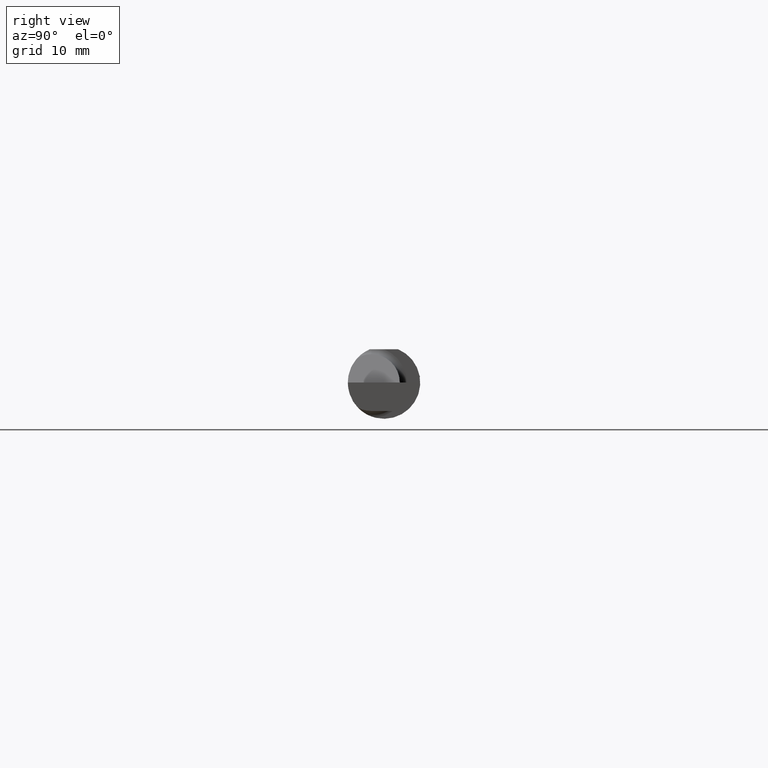
[diagram: clean part render]
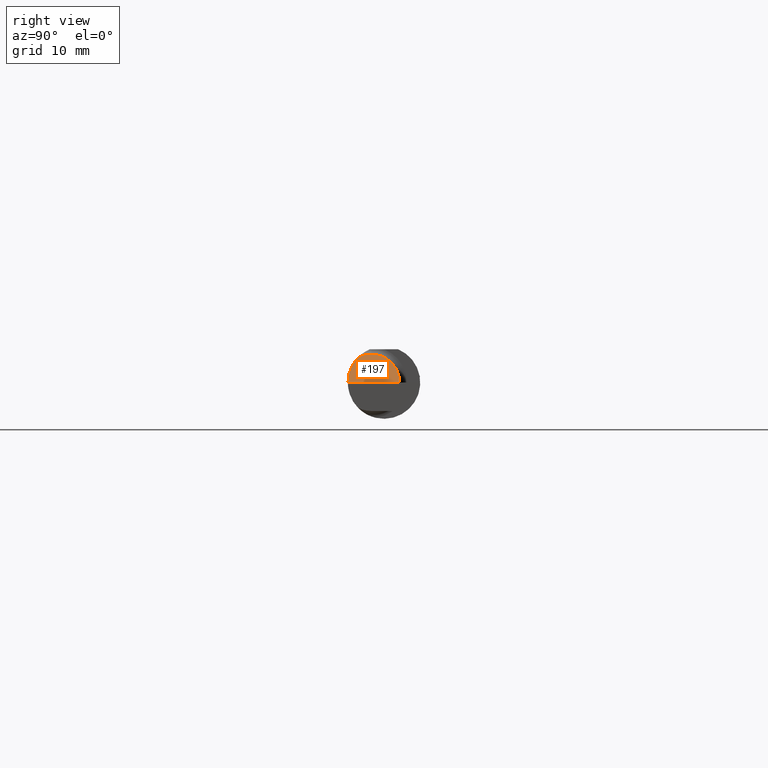
[diagram: same view with one face highlighted and labeled with its STEP entity id]
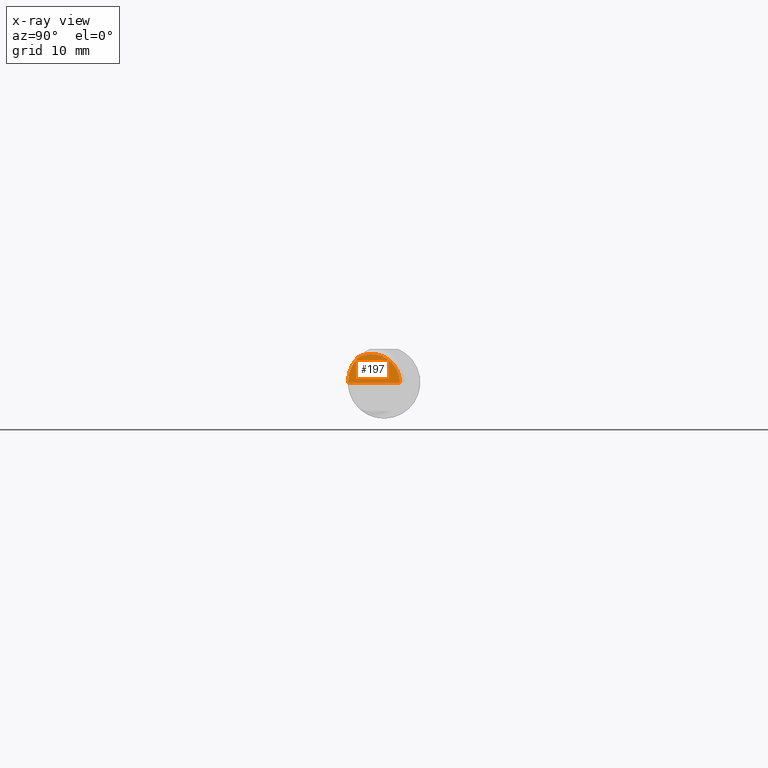
[diagram: x-ray of the same camera — body ghosted, the highlighted face saturated]
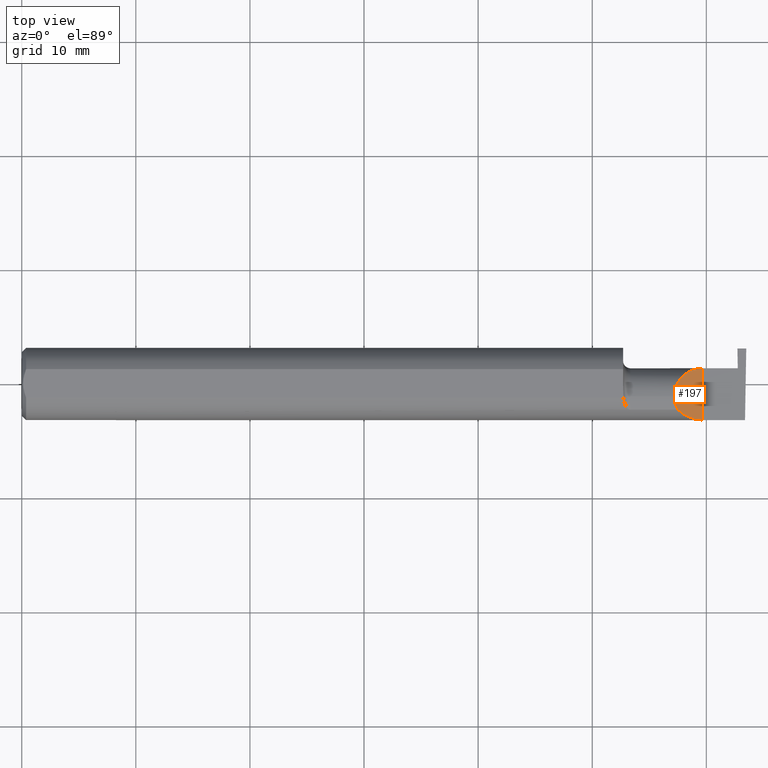
[diagram: same view with one face highlighted and labeled with its STEP entity id]
A machine part, right view. The second image highlights one B-rep face of the part: STEP entity #197.
The next image is the same camera in x-ray: the body ghosted, the highlighted face saturated — about 0% of this face is hidden behind the body in this view.
A second angle (top view) of the same face is appended — the face is thin or edge-on in the first view.
In plain terms, the highlighted planar face has unit normal (-0.7071, 0, -0.7071).
Its self-contained STEP definition (entity closure, byte-faithful):
#11 = EDGE_CURVE ( 'NONE', #609, #748, #454, .T. ) ;
#20 = CARTESIAN_POINT ( 'NONE',  ( 2.350000000000000089, -0.1248500000000000026, 1.836970198721028825E-17 ) ) ;
#23 = VERTEX_POINT ( 'NONE', #561 ) ;
#47 = CARTESIAN_POINT ( 'NONE',  ( 2.292592929112563738, 0.05415000000000004532, 0.05740707088743669112 ) ) ;
#97 = CARTESIAN_POINT ( 'NONE',  ( 2.287163018370355072, -0.1127002472623169216, 0.06283698162964553025 ) ) ;
#102 = CARTESIAN_POINT ( 'NONE',  ( 2.317406910344188997, -0.1248500000000000304, 0.03259308965581166062 ) ) ;
#142 = CARTESIAN_POINT ( 'NONE',  ( 2.252000000000000668, -0.04385000000000001397, 0.09800000000000000377 ) ) ;
#164 = ORIENTED_EDGE ( 'NONE', *, *, #786, .F. ) ;
#166 = ORIENTED_EDGE ( 'NONE', *, *, #706, .F. ) ;
#179 = EDGE_LOOP ( 'NONE', ( #164, #409, #595, #166 ) ) ;
#181 = CARTESIAN_POINT ( 'NONE',  ( 2.350000000000000089, -0.2000000000000000111, 1.836970198721028825E-17 ) ) ;
#190 = DIRECTION ( 'NONE',  ( -0.7071067811865459074, 0.000000000000000000, 0.7071067811865492381 ) ) ;
#197 = ADVANCED_FACE ( 'NONE', ( #788 ), #716, .F. ) ;
#242 = CARTESIAN_POINT ( 'NONE',  ( 2.350000000000000089, -0.2000000000000000111, 1.836970198721028825E-17 ) ) ;
#256 = CARTESIAN_POINT ( 'NONE',  ( 2.350000000000000089, -0.1248500000000000026, 1.836970198721028825E-17 ) ) ;
#272 = CARTESIAN_POINT ( 'NONE',  ( 2.263628075281542529, -0.09015216647662421812, 0.08637192471845822617 ) ) ;
#274 = CARTESIAN_POINT ( 'NONE',  ( 2.263628075281542529, -0.09015216647662421812, 0.08637192471845822617 ) ) ;
#280 = CARTESIAN_POINT ( 'NONE',  ( 2.252000000000000668, -0.04385000000000001397, 0.09800000000000000377 ) ) ;
#283 = CARTESIAN_POINT ( 'NONE',  ( 2.252000000000000668, -0.04385000000000001397, 0.09800000000000000377 ) ) ;
#302 = DIRECTION ( 'NONE',  ( -0.7071067811865492381, 0.000000000000000000, -0.7071067811865459074 ) ) ;
#303 = AXIS2_PLACEMENT_3D ( 'NONE', #242, #302, #190 ) ;
#312 = EDGE_CURVE ( 'NONE', #609, #23, #477, .T. ) ;
#313 =( BOUNDED_CURVE ( )  B_SPLINE_CURVE ( 3, ( #272, #387, #698, #280 ),
 .UNSPECIFIED., .F., .T. ) 
 B_SPLINE_CURVE_WITH_KNOTS ( ( 4, 4 ),
 ( 5.791092865617133434, 6.283185307179586232 ),
 .UNSPECIFIED. ) 
 CURVE ( )  GEOMETRIC_REPRESENTATION_ITEM ( )  RATIONAL_B_SPLINE_CURVE ( ( 1.000000000000000000, 0.9799220177372784946, 0.9799220177372784946, 1.000000000000000000 ) ) 
 REPRESENTATION_ITEM ( '' )  );
#387 = CARTESIAN_POINT ( 'NONE',  ( 2.255955442396118560, -0.07583965973232772995, 0.09404455760388213958 ) ) ;
#409 = ORIENTED_EDGE ( 'NONE', *, *, #11, .F. ) ;
#416 = DIRECTION ( 'NONE',  ( -0.000000000000000000, 1.000000000000000000, -0.000000000000000000 ) ) ;
#454 =( BOUNDED_CURVE ( )  B_SPLINE_CURVE ( 3, ( #20, #102, #97, #274 ),
 .UNSPECIFIED., .F., .F. ) 
 B_SPLINE_CURVE_WITH_KNOTS ( ( 4, 4 ),
 ( 4.712388980384690562, 5.476375539154175520 ),
 .UNSPECIFIED. ) 
 CURVE ( )  GEOMETRIC_REPRESENTATION_ITEM ( )  RATIONAL_B_SPLINE_CURVE ( ( 1.000000000000000000, 0.9519489620492029847, 0.9519489620492029847, 1.000000000000000000 ) ) 
 REPRESENTATION_ITEM ( '' )  );
#477 = LINE ( 'NONE', #181, #598 ) ;
#512 = CARTESIAN_POINT ( 'NONE',  ( 2.350000000000000089, 0.05414999999999988572, 1.836970198721028825E-17 ) ) ;
#520 = CARTESIAN_POINT ( 'NONE',  ( 2.263628075281542529, -0.09015216647662421812, 0.08637192471845822617 ) ) ;
#561 = CARTESIAN_POINT ( 'NONE',  ( 2.350000000000000089, 0.05414999999999988572, 1.836970198721028825E-17 ) ) ;
#595 = ORIENTED_EDGE ( 'NONE', *, *, #312, .T. ) ;
#598 = VECTOR ( 'NONE', #416, 39.37007874015748143 ) ;
#609 = VERTEX_POINT ( 'NONE', #256 ) ;
#654 = VERTEX_POINT ( 'NONE', #142 ) ;
#698 = CARTESIAN_POINT ( 'NONE',  ( 2.252000000000000668, -0.06008937020638503712, 0.09799999999999998990 ) ) ;
#706 = EDGE_CURVE ( 'NONE', #654, #23, #782, .T. ) ;
#716 = PLANE ( 'NONE',  #303 ) ;
#748 = VERTEX_POINT ( 'NONE', #520 ) ;
#754 = CARTESIAN_POINT ( 'NONE',  ( 2.252000000000000668, 0.01355707088743670317, 0.09799999999999996214 ) ) ;
#782 =( BOUNDED_CURVE ( )  B_SPLINE_CURVE ( 3, ( #283, #754, #47, #512 ),
 .UNSPECIFIED., .F., .T. ) 
 B_SPLINE_CURVE_WITH_KNOTS ( ( 4, 4 ),
 ( 0.000000000000000000, 1.570796326794896558 ),
 .UNSPECIFIED. ) 
 CURVE ( )  GEOMETRIC_REPRESENTATION_ITEM ( )  RATIONAL_B_SPLINE_CURVE ( ( 1.000000000000000000, 0.8047378541243649375, 0.8047378541243649375, 1.000000000000000000 ) ) 
 REPRESENTATION_ITEM ( '' )  );
#786 = EDGE_CURVE ( 'NONE', #748, #654, #313, .T. ) ;
#788 = FACE_OUTER_BOUND ( 'NONE', #179, .T. ) ;